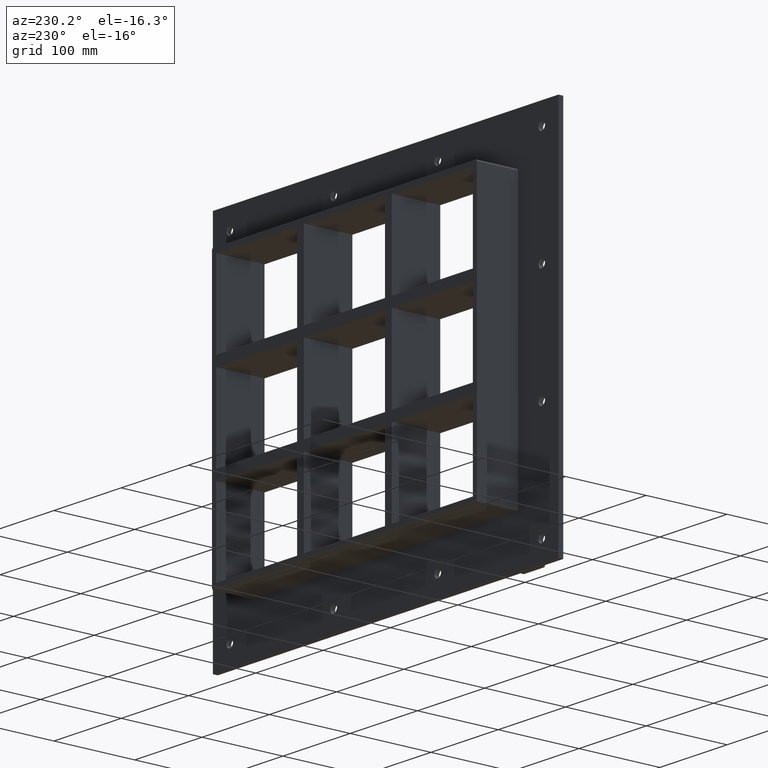
[diagram: clean part render]
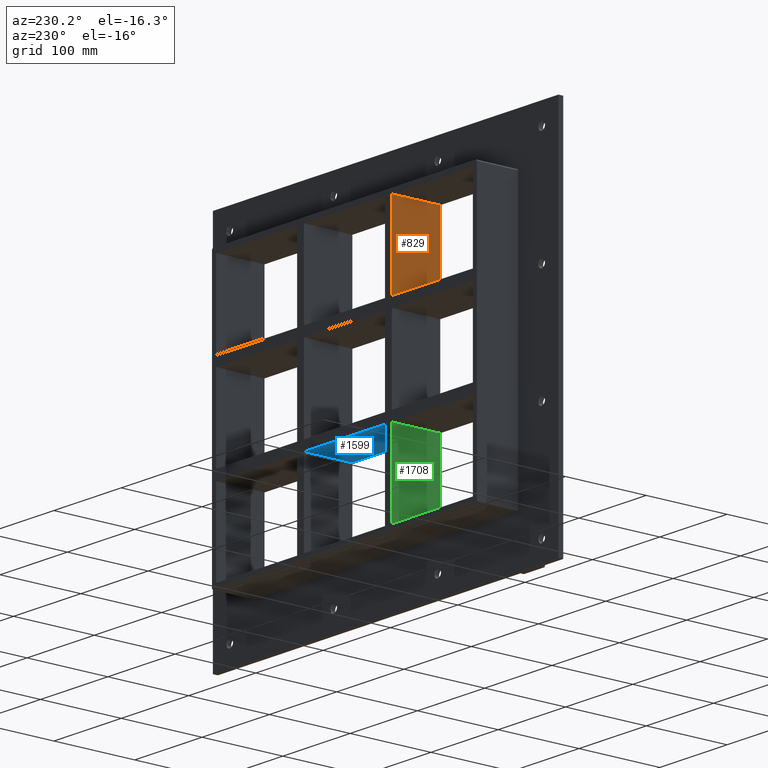
[diagram: same view with three faces highlighted in distinct colors, each labeled with its STEP entity id]
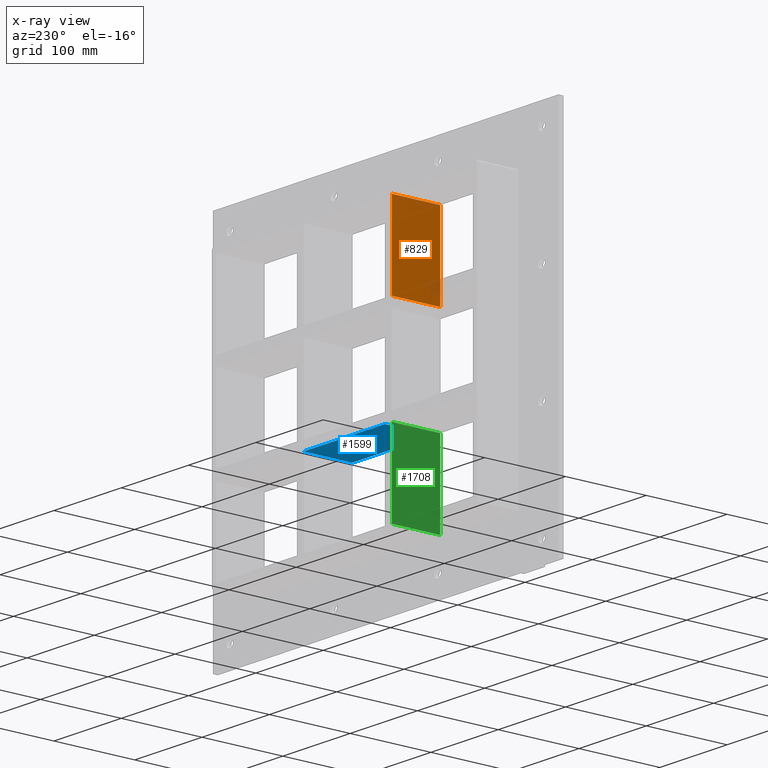
[diagram: x-ray of the same camera — body ghosted, the three highlighted faces saturated]
A machine part, auxiliary view with three faces highlighted in distinct colors.
The next image is the same camera in x-ray (body ghosted, the three faces saturated) — at least one of them is partly hidden behind the body in this view.
Their STEP definitions:

[orange] entity #829 — the highlighted planar face has unit normal (-1, 0, 0).
#529=CARTESIAN_POINT('',(-70.250000000000369,57.0,62.500000000000462));
#530=VERTEX_POINT('',#529);
#531=CARTESIAN_POINT('',(-70.250000000000369,-3.0,62.500000000000462));
#532=VERTEX_POINT('',#531);
#533=CARTESIAN_POINT('',(-70.250000000000369,57.0,62.500000000000462));
#534=DIRECTION('',(0.0,-1.0,0.0));
#535=VECTOR('',#534,60.0);
#536=LINE('',#533,#535);
#537=EDGE_CURVE('',#530,#532,#536,.T.);
#799=CARTESIAN_POINT('',(-70.250000000000341,-3.0,-163.50000000000009));
#800=DIRECTION('',(-1.0,0.0,0.0));
#801=DIRECTION('',(0.0,0.0,1.0));
#802=AXIS2_PLACEMENT_3D('',#799,#800,#801);
#803=PLANE('',#802);
#804=ORIENTED_EDGE('',*,*,#537,.T.);
#805=CARTESIAN_POINT('',(-70.250000000000369,-3.0,163.50000000000009));
#806=VERTEX_POINT('',#805);
#807=CARTESIAN_POINT('',(-70.250000000000369,-3.0,62.500000000000455));
#808=DIRECTION('',(0.0,0.0,1.0));
#809=VECTOR('',#808,100.99999999999963);
#810=LINE('',#807,#809);
#811=EDGE_CURVE('',#532,#806,#810,.T.);
#812=ORIENTED_EDGE('',*,*,#811,.T.);
#813=CARTESIAN_POINT('',(-70.250000000000369,57.0,163.50000000000009));
#814=VERTEX_POINT('',#813);
#815=CARTESIAN_POINT('',(-70.250000000000369,57.000000000000007,163.50000000000006));
#816=DIRECTION('',(0.0,-1.0,0.0));
#817=VECTOR('',#816,60.000000000000007);
#818=LINE('',#815,#817);
#819=EDGE_CURVE('',#814,#806,#818,.T.);
#820=ORIENTED_EDGE('',*,*,#819,.F.);
#821=CARTESIAN_POINT('',(-70.250000000000369,57.0,62.500000000000455));
#822=DIRECTION('',(0.0,0.0,1.0));
#823=VECTOR('',#822,100.99999999999963);
#824=LINE('',#821,#823);
#825=EDGE_CURVE('',#530,#814,#824,.T.);
#826=ORIENTED_EDGE('',*,*,#825,.F.);
#827=EDGE_LOOP('',(#804,#812,#820,#826));
#828=FACE_OUTER_BOUND('',#827,.T.);
#829=ADVANCED_FACE('',(#828),#803,.T.);

[blue] entity #1599 — the highlighted planar face has unit normal (0, 0, -1).
#1068=CARTESIAN_POINT('',(60.249999999999659,57.0,-62.500000000011141));
#1069=VERTEX_POINT('',#1068);
#1076=CARTESIAN_POINT('',(-60.249999999996362,57.0,-62.500000000011241));
#1077=VERTEX_POINT('',#1076);
#1078=CARTESIAN_POINT('',(60.249999999999659,57.0,-62.500000000011134));
#1079=DIRECTION('',(-1.0,0.0,0.0));
#1080=VECTOR('',#1079,120.49999999999602);
#1081=LINE('',#1078,#1080);
#1082=EDGE_CURVE('',#1069,#1077,#1081,.T.);
#1175=CARTESIAN_POINT('',(60.249999999999659,-3.0,-62.500000000011141));
#1176=VERTEX_POINT('',#1175);
#1177=CARTESIAN_POINT('',(60.249999999999645,57.0,-62.500000000011127));
#1178=DIRECTION('',(0.0,-1.0,0.0));
#1179=VECTOR('',#1178,60.0);
#1180=LINE('',#1177,#1179);
#1181=EDGE_CURVE('',#1069,#1176,#1180,.T.);
#1460=CARTESIAN_POINT('',(-60.249999999996362,-3.0,-62.500000000011241));
#1461=VERTEX_POINT('',#1460);
#1468=CARTESIAN_POINT('',(60.249999999999659,-3.0,-62.500000000011134));
#1469=DIRECTION('',(-1.0,0.0,0.0));
#1470=VECTOR('',#1469,120.49999999999602);
#1471=LINE('',#1468,#1470);
#1472=EDGE_CURVE('',#1176,#1461,#1471,.T.);
#1583=CARTESIAN_POINT('',(190.75000000000728,-3.0,-62.500000000011006));
#1584=DIRECTION('',(0.0,0.0,-1.0));
#1585=DIRECTION('',(-1.0,0.0,0.0));
#1586=AXIS2_PLACEMENT_3D('',#1583,#1584,#1585);
#1587=PLANE('',#1586);
#1588=ORIENTED_EDGE('',*,*,#1181,.T.);
#1589=ORIENTED_EDGE('',*,*,#1472,.T.);
#1590=CARTESIAN_POINT('',(-60.249999999996362,57.0,-62.500000000011255));
#1591=DIRECTION('',(0.0,-1.0,0.0));
#1592=VECTOR('',#1591,60.0);
#1593=LINE('',#1590,#1592);
#1594=EDGE_CURVE('',#1077,#1461,#1593,.T.);
#1595=ORIENTED_EDGE('',*,*,#1594,.F.);
#1596=ORIENTED_EDGE('',*,*,#1082,.F.);
#1597=EDGE_LOOP('',(#1588,#1589,#1595,#1596));
#1598=FACE_OUTER_BOUND('',#1597,.T.);
#1599=ADVANCED_FACE('',(#1598),#1587,.T.);

[green] entity #1708 — the highlighted planar face has unit normal (-1, 0, 0).
#1042=CARTESIAN_POINT('',(-70.250000000000341,57.0,-163.50000000000009));
#1043=VERTEX_POINT('',#1042);
#1050=CARTESIAN_POINT('',(-70.250000000000341,57.0,-62.500000000011255));
#1051=VERTEX_POINT('',#1050);
#1052=CARTESIAN_POINT('',(-70.250000000000341,57.0,-163.50000000000009));
#1053=DIRECTION('',(0.0,0.0,1.0));
#1054=VECTOR('',#1053,100.99999999998883);
#1055=LINE('',#1052,#1054);
#1056=EDGE_CURVE('',#1043,#1051,#1055,.T.);
#1495=CARTESIAN_POINT('',(-70.250000000000341,-3.0,-62.500000000011255));
#1496=VERTEX_POINT('',#1495);
#1505=CARTESIAN_POINT('',(-70.250000000000341,-3.0,-163.50000000000009));
#1506=VERTEX_POINT('',#1505);
#1507=CARTESIAN_POINT('',(-70.250000000000341,-3.0,-163.50000000000009));
#1508=DIRECTION('',(0.0,0.0,1.0));
#1509=VECTOR('',#1508,100.99999999998883);
#1510=LINE('',#1507,#1509);
#1511=EDGE_CURVE('',#1506,#1496,#1510,.T.);
#1605=CARTESIAN_POINT('',(-70.250000000000369,-3.0,-62.500000000011262));
#1606=DIRECTION('',(0.0,1.0,0.0));
#1607=VECTOR('',#1606,60.0);
#1608=LINE('',#1605,#1607);
#1609=EDGE_CURVE('',#1496,#1051,#1608,.T.);
#1692=CARTESIAN_POINT('',(-70.250000000000341,-3.0,-163.50000000000009));
#1693=DIRECTION('',(-1.0,0.0,0.0));
#1694=DIRECTION('',(0.0,0.0,1.0));
#1695=AXIS2_PLACEMENT_3D('',#1692,#1693,#1694);
#1696=PLANE('',#1695);
#1697=ORIENTED_EDGE('',*,*,#1609,.T.);
#1698=ORIENTED_EDGE('',*,*,#1056,.F.);
#1699=CARTESIAN_POINT('',(-70.250000000000341,-3.0,-163.50000000000009));
#1700=DIRECTION('',(0.0,1.0,0.0));
#1701=VECTOR('',#1700,60.000000000000007);
#1702=LINE('',#1699,#1701);
#1703=EDGE_CURVE('',#1506,#1043,#1702,.T.);
#1704=ORIENTED_EDGE('',*,*,#1703,.F.);
#1705=ORIENTED_EDGE('',*,*,#1511,.T.);
#1706=EDGE_LOOP('',(#1697,#1698,#1704,#1705));
#1707=FACE_OUTER_BOUND('',#1706,.T.);
#1708=ADVANCED_FACE('',(#1707),#1696,.T.);